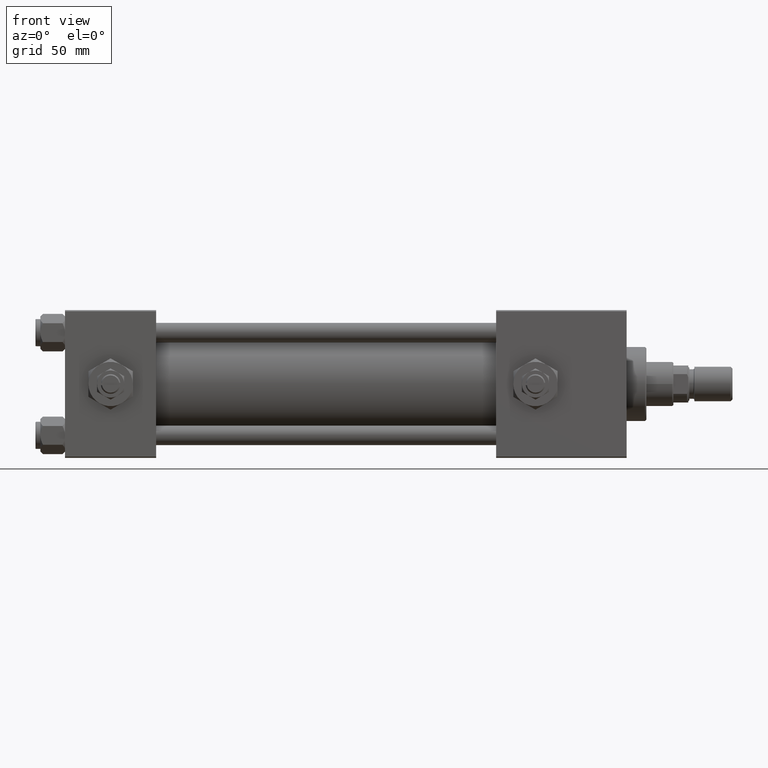
[diagram: clean part render]
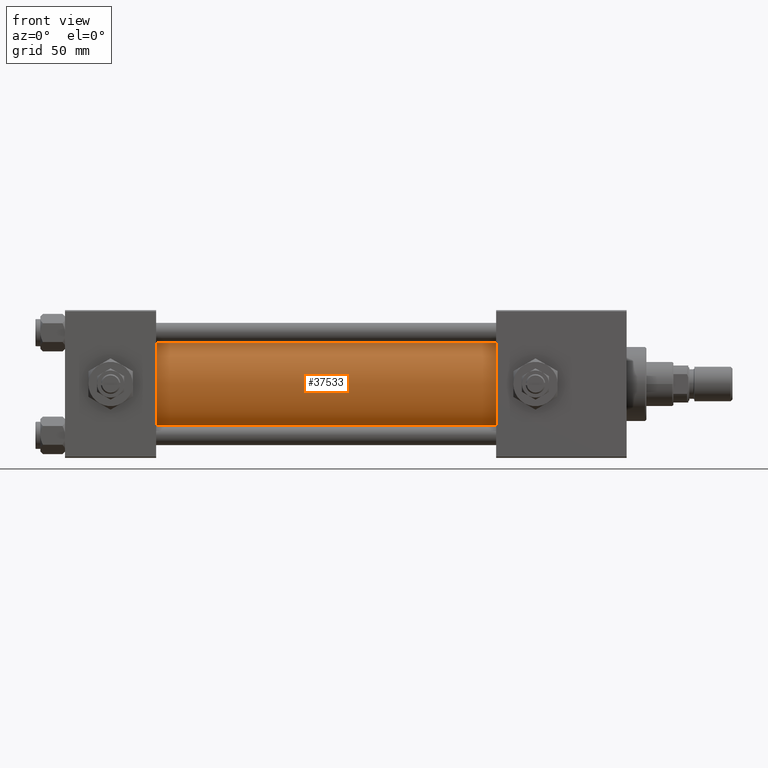
[diagram: same view with one face highlighted and labeled with its STEP entity id]
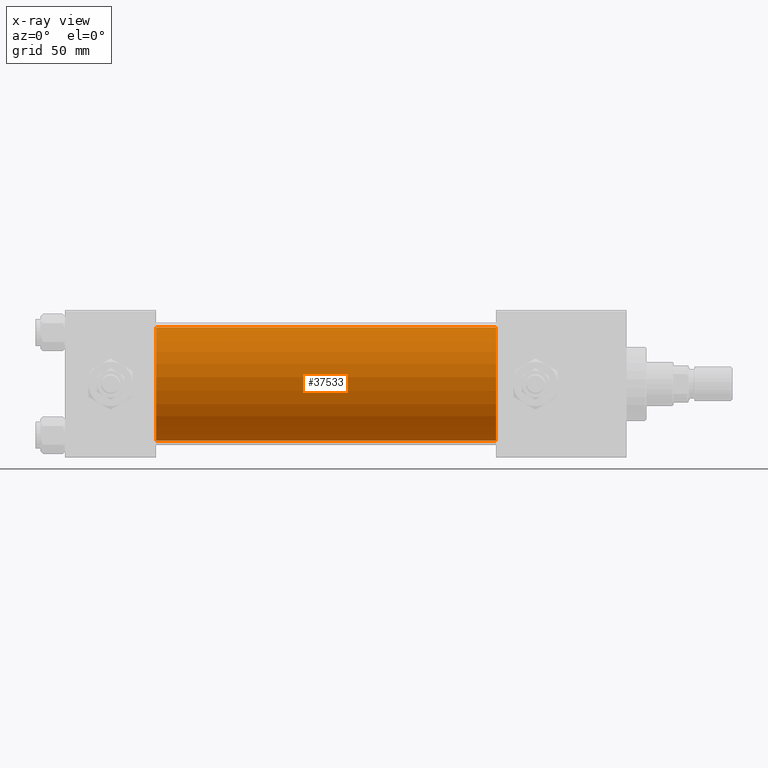
[diagram: x-ray of the same camera — body ghosted, the highlighted face saturated]
A machine part, front view. The second image highlights one B-rep face of the part: STEP entity #37533.
The next image is the same camera in x-ray: the body ghosted, the highlighted face saturated — about 0% of this face is hidden behind the body in this view.
In plain terms, the highlighted cylindrical surface (partial cylindrical patch) has radius 23 mm, axis along (-1, -0, -0).
Its self-contained STEP definition (entity closure, byte-faithful):
#611 = CYLINDRICAL_SURFACE ( 'NONE', #12112, 23.00000000000000000 ) ;
#5280 = CARTESIAN_POINT ( 'NONE',  ( 175.0000000000000284, 2.146024240737016609E-16, -23.00000000000000000 ) ) ;
#5695 = DIRECTION ( 'NONE',  ( -1.000000000000000000, -0.000000000000000000, -0.000000000000000000 ) ) ;
#5954 = LINE ( 'NONE', #10762, #37244 ) ;
#7789 = ORIENTED_EDGE ( 'NONE', *, *, #27928, .F. ) ;
#8857 = DIRECTION ( 'NONE',  ( 0.000000000000000000, 0.000000000000000000, 1.000000000000000000 ) ) ;
#10762 = CARTESIAN_POINT ( 'NONE',  ( 175.0000000000000284, -2.602085213965210642E-15, 23.00000000000000000 ) ) ;
#11643 = EDGE_LOOP ( 'NONE', ( #49085, #7789, #41437, #52824 ) ) ;
#12112 = AXIS2_PLACEMENT_3D ( 'NONE', #13178, #20693, #41256 ) ;
#13178 = CARTESIAN_POINT ( 'NONE',  ( 175.0000000000000284, -2.602085213965210642E-15, 0.000000000000000000 ) ) ;
#13922 = LINE ( 'NONE', #50835, #50185 ) ;
#16133 = VERTEX_POINT ( 'NONE', #36418 ) ;
#17041 = CIRCLE ( 'NONE', #47770, 23.00000000000000000 ) ;
#20338 = VERTEX_POINT ( 'NONE', #31825 ) ;
#20633 = CARTESIAN_POINT ( 'NONE',  ( 37.00000000000000711, -2.602085213965210642E-15, 0.000000000000000000 ) ) ;
#20693 = DIRECTION ( 'NONE',  ( -1.000000000000000000, -0.000000000000000000, -0.000000000000000000 ) ) ;
#22112 = DIRECTION ( 'NONE',  ( 1.000000000000000000, 0.000000000000000000, 0.000000000000000000 ) ) ;
#22231 = AXIS2_PLACEMENT_3D ( 'NONE', #20633, #28912, #8857 ) ;
#23208 = CARTESIAN_POINT ( 'NONE',  ( 37.00000000000000711, 2.146024240737016609E-16, -23.00000000000000000 ) ) ;
#24251 = EDGE_CURVE ( 'NONE', #45960, #49070, #13922, .T. ) ;
#25494 = FACE_OUTER_BOUND ( 'NONE', #11643, .T. ) ;
#26494 = DIRECTION ( 'NONE',  ( -1.000000000000000000, -0.000000000000000000, -0.000000000000000000 ) ) ;
#27928 = EDGE_CURVE ( 'NONE', #16133, #45960, #17041, .T. ) ;
#28912 = DIRECTION ( 'NONE',  ( 1.000000000000000000, -0.000000000000000000, 0.000000000000000000 ) ) ;
#30619 = EDGE_CURVE ( 'NONE', #20338, #49070, #46999, .T. ) ;
#31825 = CARTESIAN_POINT ( 'NONE',  ( 37.00000000000000711, -2.602085213965210642E-15, 23.00000000000000000 ) ) ;
#36418 = CARTESIAN_POINT ( 'NONE',  ( 175.0000000000000284, -2.602085213965210642E-15, 23.00000000000000000 ) ) ;
#37244 = VECTOR ( 'NONE', #5695, 1000.000000000000000 ) ;
#37533 = ADVANCED_FACE ( 'NONE', ( #25494 ), #611, .T. ) ;
#41256 = DIRECTION ( 'NONE',  ( 0.000000000000000000, 0.000000000000000000, 1.000000000000000000 ) ) ;
#41437 = ORIENTED_EDGE ( 'NONE', *, *, #47543, .T. ) ;
#45960 = VERTEX_POINT ( 'NONE', #5280 ) ;
#46999 = CIRCLE ( 'NONE', #22231, 23.00000000000000000 ) ;
#47543 = EDGE_CURVE ( 'NONE', #16133, #20338, #5954, .T. ) ;
#47753 = CARTESIAN_POINT ( 'NONE',  ( 175.0000000000000284, -2.602085213965210642E-15, 0.000000000000000000 ) ) ;
#47770 = AXIS2_PLACEMENT_3D ( 'NONE', #47753, #22112, #51493 ) ;
#49070 = VERTEX_POINT ( 'NONE', #23208 ) ;
#49085 = ORIENTED_EDGE ( 'NONE', *, *, #24251, .F. ) ;
#50185 = VECTOR ( 'NONE', #26494, 1000.000000000000000 ) ;
#50835 = CARTESIAN_POINT ( 'NONE',  ( 175.0000000000000284, 2.146024240737016609E-16, -23.00000000000000000 ) ) ;
#51493 = DIRECTION ( 'NONE',  ( 0.000000000000000000, 0.000000000000000000, -1.000000000000000000 ) ) ;
#52824 = ORIENTED_EDGE ( 'NONE', *, *, #30619, .T. ) ;